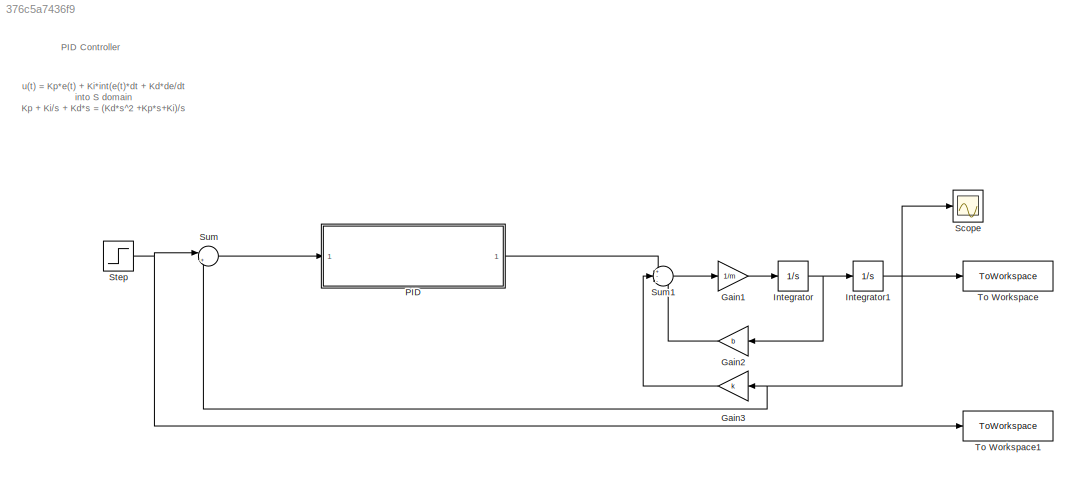
MODEL slx_376c5a7436f9
KIND model
CONFIG AbsTol = auto
CONFIG EnableMultiTasking = off
CONFIG FixedStep = auto
CONFIG MaxStep = 0.01
CONFIG MinStep = auto
CONFIG RelTol = 1e-3
CONFIG SampleTimeConstraint = Unconstrained
CONFIG Solver = VariableStepAuto
CONFIG SolverName = VariableStepAuto
CONFIG StartTime = 0.0
CONFIG StopTime = Sim_Time
BLOCK [Gain] Gain1
  Gain = 1/m
BLOCK [Gain] Gain2
  Gain = b
BLOCK [Gain] Gain3
  Gain = k
BLOCK [Integrator] Integrator
  Ports = [1, 1]
BLOCK [Integrator] Integrator1
  Ports = [1, 1]
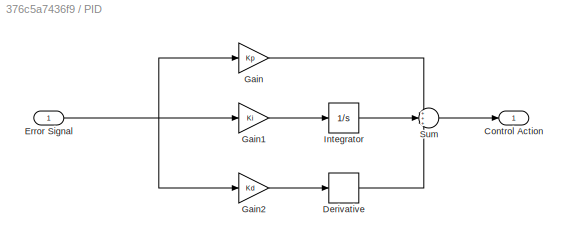
BLOCK [SubSystem] PID
  Ports = [1, 1]
  RequestExecContextInheritance = off
BLOCK [Outport] PID/Control Action
BLOCK [Derivative] PID/Derivative
BLOCK [Inport] PID/Error Signal
BLOCK [Gain] PID/Gain
  Gain = Kp
BLOCK [Gain] PID/Gain1
  Gain = Ki
BLOCK [Gain] PID/Gain2
  Gain = Kd
BLOCK [Integrator] PID/Integrator
  Ports = [1, 1]
BLOCK [Sum] PID/Sum
  Inputs = +++
  Ports = [3, 1]
BLOCK [Scope] Scope
  Floating = off
  NumInputPorts = 1
  Ports = [1]
  ScopeSpecificationString = Simulink.scopes.TimeScopeBlockCfg('CurrentConfiguration', extmgr.ConfigurationSet(extmgr.Configuration('Core','General UI',true),extmgr.Configuration('Core','Source UI',true),extmgr.Configuration('Sources','WiredSimulink',true),extmgr.Configuration('Visuals','Time Domain',true),extmgr.Configuration('Tools','Plot Navigation',true),extmgr.Configuration('Tools','Measurements',true)),'Version','2020a'...<+1ch>
BLOCK [Step] Step
  SampleTime = 0
BLOCK [Sum] Sum
  Inputs = |+-
  Ports = [2, 1]
BLOCK [Sum] Sum1
  Inputs = +--
  Ports = [3, 1]
BLOCK [ToWorkspace] To Workspace
  FixptAsFi = on
  MaxDataPoints = inf
  Ports = [1]
  SampleTime = -1
  VariableName = output
BLOCK [ToWorkspace] To Workspace1
  FixptAsFi = on
  MaxDataPoints = inf
  Ports = [1]
  SampleTime = -1
  VariableName = in
ANNOTATION (root): PID Controller
ANNOTATION (root): u(t) = Kp*e(t) + Ki*int(e(t)*dt + Kd*de/dt into S domain Kp + Ki/s + Kd*s = (Kd*s^2 +Kp*s+Ki)/s
LINE Gain1:1 -> Integrator:1
LINE Gain2:1 -> Sum1:3
LINE Gain3:1 -> Sum1:2
NET Integrator1:1 -> Gain3:1, Scope:1, Sum:2, To Workspace:1
NET Integrator:1 -> Gain2:1, Integrator1:1
LINE PID/Derivative:1 -> PID/Sum:3
NET PID/Error Signal:1 -> PID/Gain1:1, PID/Gain2:1, PID/Gain:1
LINE PID/Gain1:1 -> PID/Integrator:1
LINE PID/Gain2:1 -> PID/Derivative:1
LINE PID/Gain:1 -> PID/Sum:1
LINE PID/Integrator:1 -> PID/Sum:2
LINE PID/Sum:1 -> PID/Control Action:1
LINE PID:1 -> Sum1:1
NET Step:1 -> Sum:1, To Workspace1:1
LINE Sum1:1 -> Gain1:1
LINE Sum:1 -> PID:1
note: NET lines group one-source signal fan-out (src -> all destinations, sorted); 1:1 wires keep LINE
